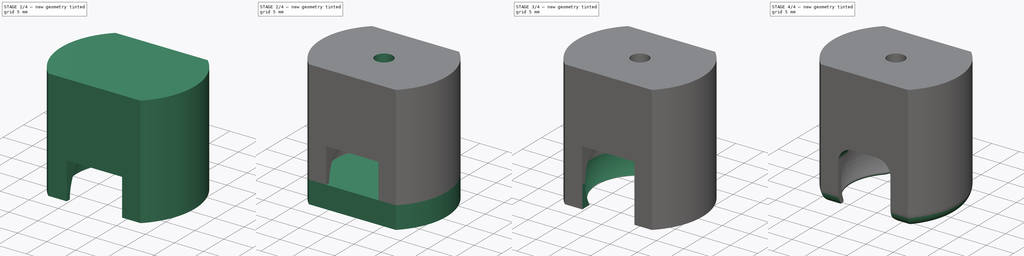
[diagram: build sequence overview — one tinted view per stage of 4, left to right]
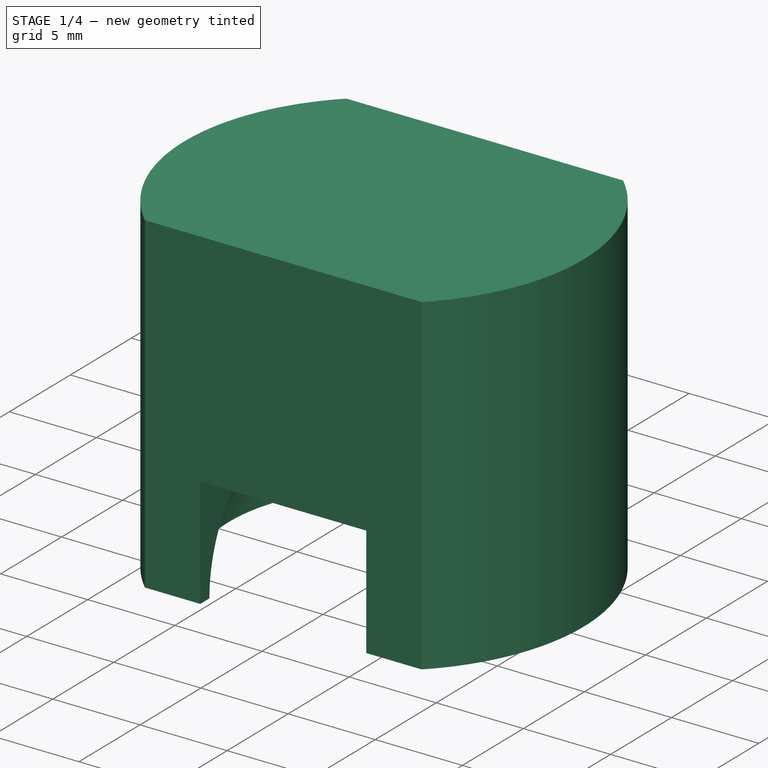
[diagram: stage 1 of 4 — iso view after this stage's code; geometry added in this stage tinted green]
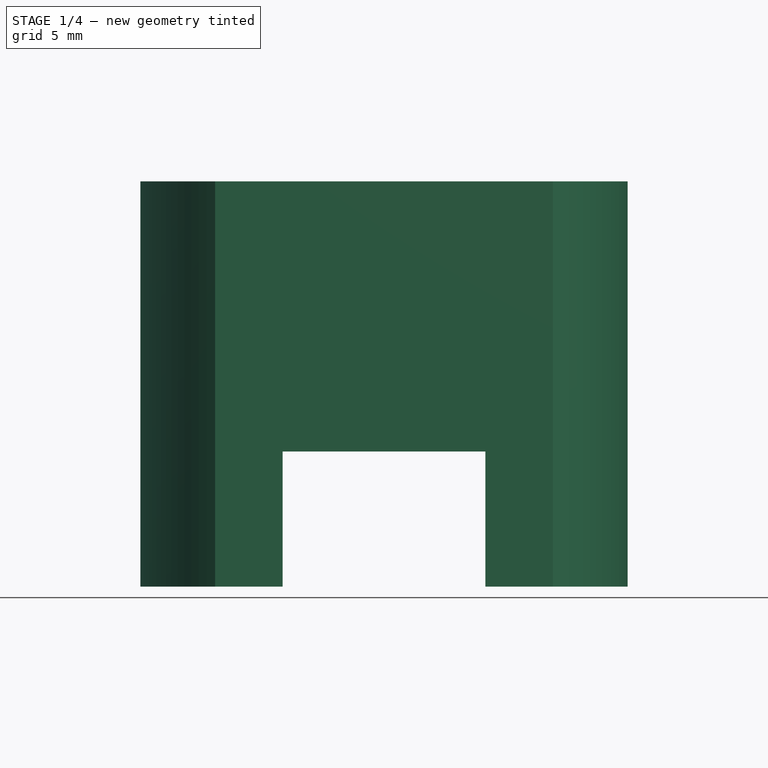
[diagram: stage 1 of 4 — front view after this stage's code; geometry added in this stage tinted green]
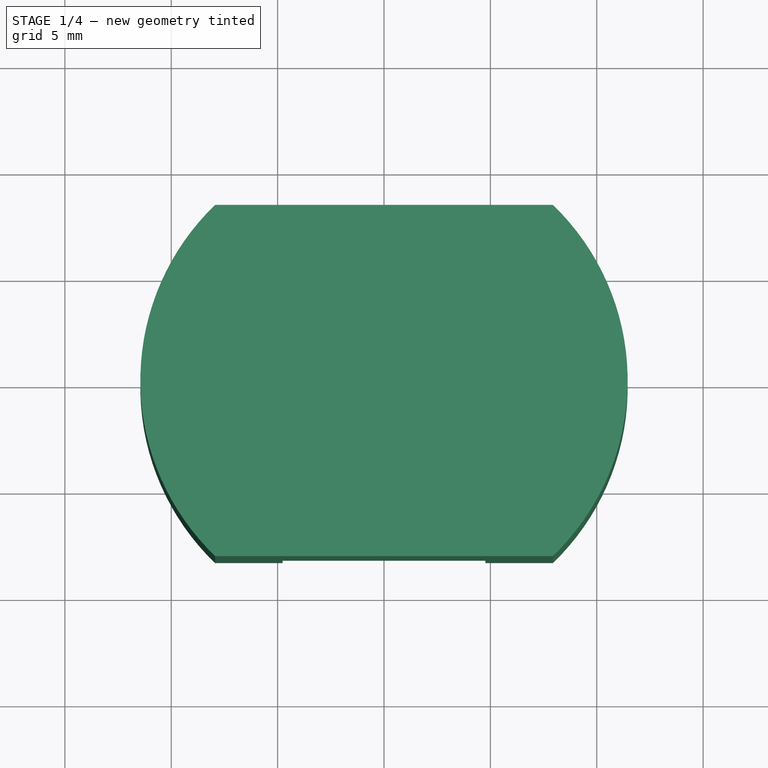
[diagram: stage 1 of 4 — top view after this stage's code; geometry added in this stage tinted green]
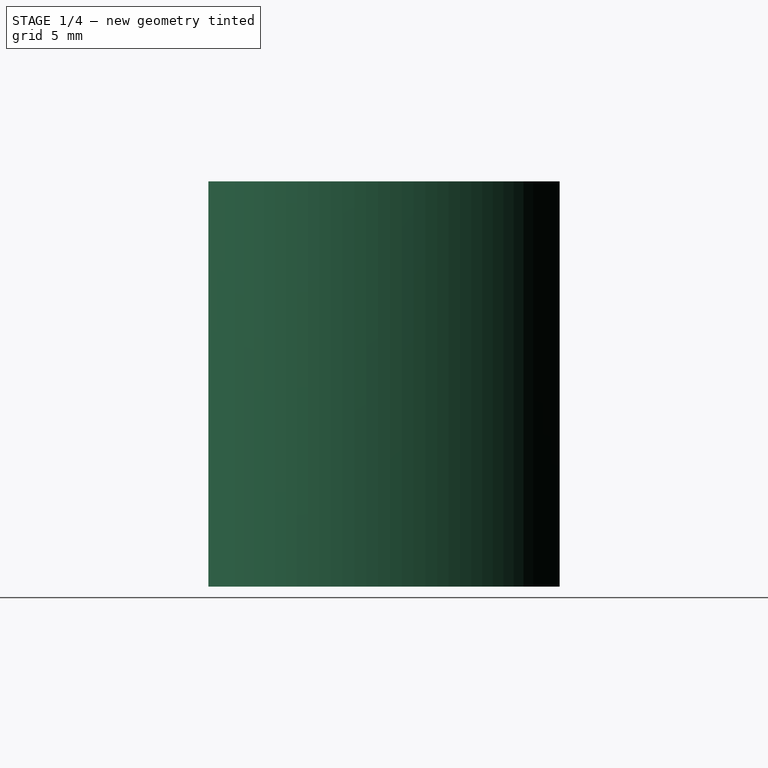
[diagram: stage 1 of 4 — right view after this stage's code; geometry added in this stage tinted green]
FCSTD DOCUMENT  (FreeCAD 0.15R4671 (Git))
Label: caster
License: All rights reserved
LicenseURL: http://en.wikipedia.org/wiki/All_rights_reserved
objects: Sketcher::SketchObject×8, PartDesign::Pocket×4, PartDesign::Fillet×3, PartDesign::Pad×2, PartDesign::Groove×2
note: 27 computed .brp shape members not serialized (recipe doc carries the construction recipe); baked Part::Feature solids carry a one-line shape summary decoded from their .brp

FEATURE [Sketcher::SketchObject] Sketch
  sketch-geometry (5):
    g0: Circle [constr] CenterX=0 CenterY=0 CenterZ=0 NormalX=0 NormalY=0 NormalZ=1 Radius=7.9375
    g1: LineSegment StartX=-7.9375 StartY=-8.255 StartZ=0 EndX=7.9375 EndY=-8.255 EndZ=0
    g2: LineSegment StartX=-7.9375 StartY=8.255 StartZ=0 EndX=7.9375 EndY=8.255 EndZ=0
    g3: ArcOfCircle CenterX=0 CenterY=0 CenterZ=0 NormalX=0 NormalY=0 NormalZ=1 Radius=11.452 StartAngle=5.47818 EndAngle=7.08819
    g4: ArcOfCircle CenterX=0 CenterY=0 CenterZ=0 NormalX=0 NormalY=0 NormalZ=1 Radius=11.452 StartAngle=2.33659 EndAngle=3.9466
  constraints (13):
    c: Radius(g0) = 7.9375
    c: Coincident(g0,g-1)
    c: Equal(g2,g1)
    c: Symmetric(g2,g2,g-2)
    c: Symmetric(g1,g1,g-2)
    c: Distance(g2) = 15.875
    c: Coincident(g3,g2)
    c: Coincident(g3,g1)
    c: Coincident(g3,g-1)
    c: Coincident(g4,g2)
    c: Coincident(g4,g1)
    c: Equal(g4,g3)
    c: Distance(g2,g1) = 16.51
FEATURE [PartDesign::Pad] Pad
  Length = 19.05
  Length2 = 100
  Sketch = -> Sketch
  Type = 0
FEATURE [Sketcher::SketchObject] Sketch001
  Placement = pos=(0,0,0) rot=(1,0,0;3.14159rad)
  Support = -> Pad [Face5]
  sketch-geometry (2):
    g0: ArcOfCircle CenterX=0 CenterY=0 CenterZ=0 NormalX=0 NormalY=0 NormalZ=1 Radius=8.89 StartAngle=4.71239 EndAngle=7.85398
    g1: LineSegment StartX=0 StartY=-8.89 StartZ=0 EndX=0 EndY=8.89 EndZ=0
  constraints (6):
    c: Radius(g0) = 8.89
    c: Coincident(g0,g-1)
    c: Vertical(g1)
    c: Coincident(g0,g1)
    c: Coincident(g0,g1)
    c: PointOnObject(g0,g-2)
FEATURE [PartDesign::Groove] Groove
  Angle = 180
  Axis = (0,-1,0)
  Base = (0,0,0)
  ReferenceAxis = -> Sketch001 [V_Axis]
  Sketch = -> Sketch001
FEATURE [Sketcher::SketchObject] Sketch002
  Placement = pos=(0,8.255,0) rot=(0,0.707107,0.707107;3.14159rad)
  Support = -> Groove [Face2]
  sketch-geometry (4):
    g0: LineSegment StartX=-4.7625 StartY=0 StartZ=0 EndX=-4.7625 EndY=6.35 EndZ=0
    g1: LineSegment StartX=-4.7625 StartY=6.35 StartZ=0 EndX=4.7625 EndY=6.35 EndZ=0
    g2: LineSegment StartX=4.7625 StartY=6.35 StartZ=0 EndX=4.7625 EndY=0 EndZ=0
    g3: LineSegment StartX=4.7625 StartY=0 StartZ=0 EndX=-4.7625 EndY=0 EndZ=0
  constraints (12):
    c: PointOnObject(g0,g-1)
    c: Vertical(g0)
    c: Coincident(g0,g1)
    c: Horizontal(g1)
    c: Coincident(g1,g2)
    c: PointOnObject(g2,g-1)
    c: Coincident(g2,g3)
    c: Coincident(g3,g0)
    c: Vertical(g2)
    c: Symmetric(g1,g0,g-2)
    c: Distance(g2) = 6.35
    c: Distance(g1) = 9.525
FEATURE [PartDesign::Pocket] Pocket
  Length = 25.4
  Sketch = -> Sketch002
  Type = 0
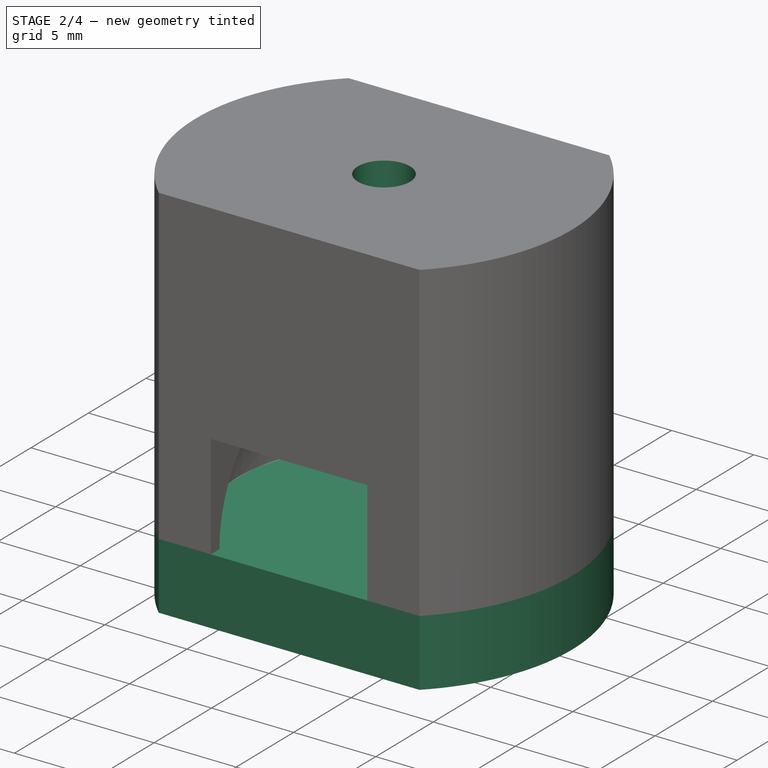
[diagram: stage 2 of 4 — iso view after this stage's code; geometry added in this stage tinted green]
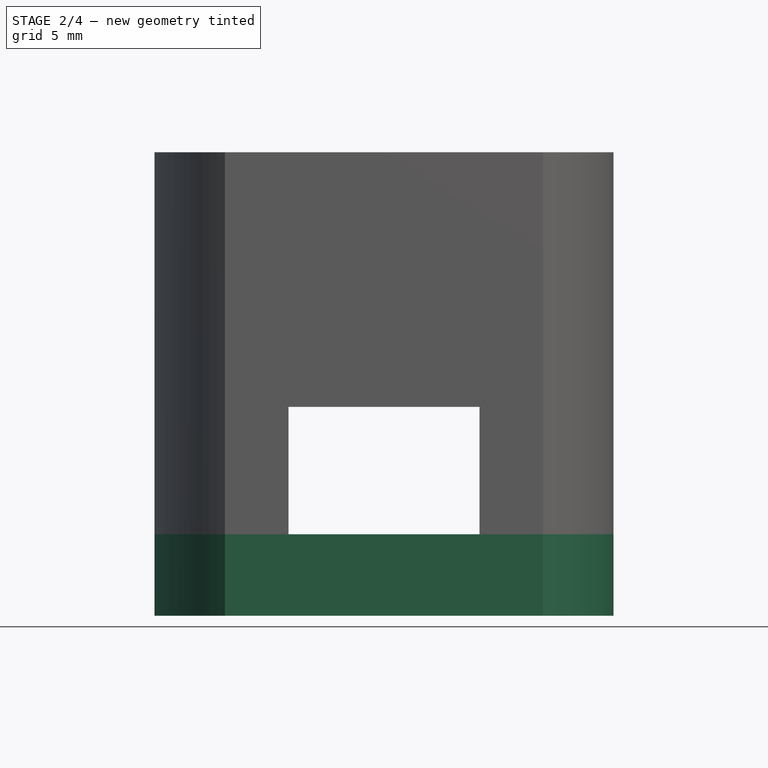
[diagram: stage 2 of 4 — front view after this stage's code; geometry added in this stage tinted green]
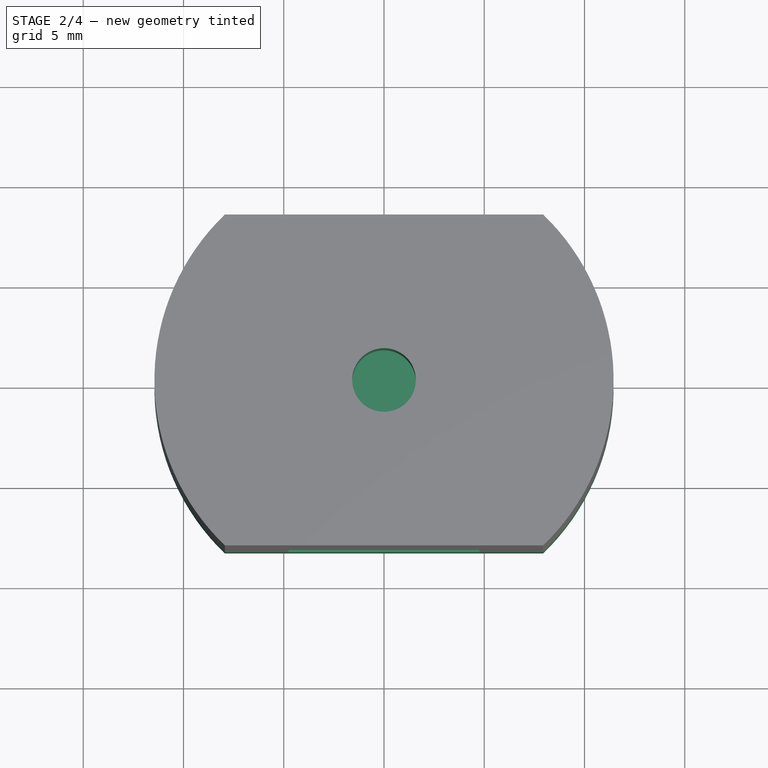
[diagram: stage 2 of 4 — top view after this stage's code; geometry added in this stage tinted green]
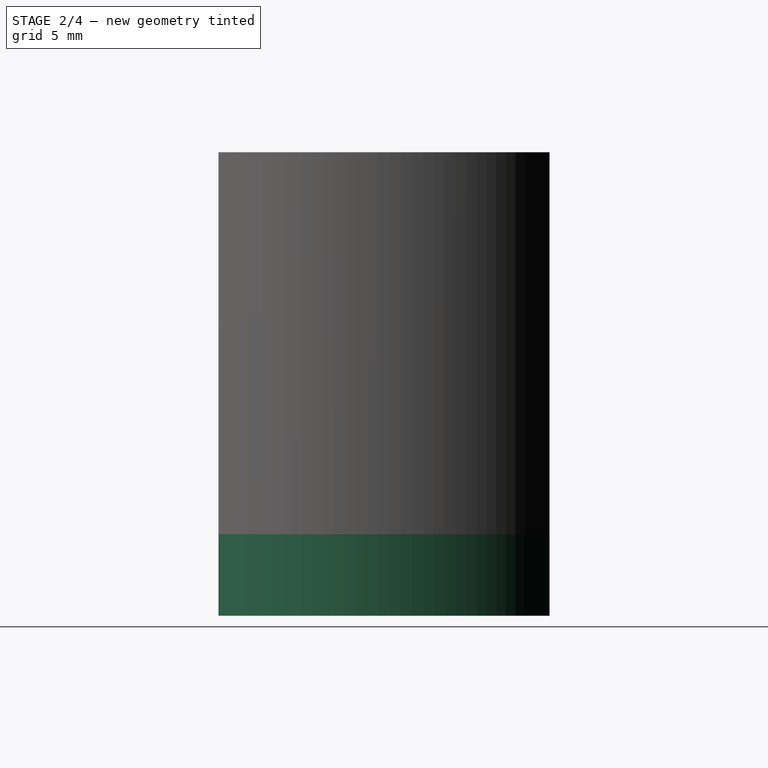
[diagram: stage 2 of 4 — right view after this stage's code; geometry added in this stage tinted green]
FEATURE [Sketcher::SketchObject] Sketch003
  Placement = pos=(0,0,0) rot=(1,0,0;3.14159rad)
  Support = -> Pocket [Face9]
  sketch-geometry (1):
    g0: Circle CenterX=0 CenterY=0 CenterZ=0 NormalX=0 NormalY=0 NormalZ=1 Radius=2.8575
  constraints (2):
    c: Coincident(g0,g-1)
    c: Radius(g0) = 2.8575
FEATURE [PartDesign::Pocket] Pocket001
  Length = 12.7
  Sketch = -> Sketch003
  Type = 0
FEATURE [Sketcher::SketchObject] Sketch004
  Placement = pos=(0,0,19.05) rot=(0,0,1;0rad)
  Support = -> Pocket001 [Face5]
  sketch-geometry (1):
    g0: Circle CenterX=0 CenterY=0 CenterZ=0 NormalX=0 NormalY=0 NormalZ=1 Radius=1.5875
  constraints (2):
    c: Coincident(g0,g-1)
    c: Radius(g0) = 1.5875
FEATURE [PartDesign::Pocket] Pocket002
  Length = 7.9375
  Sketch = -> Sketch004
  Type = 0
FEATURE [Sketcher::SketchObject] Sketch005
  Placement = pos=(0,0,0) rot=(1,0,0;3.14159rad)
  Support = -> Pocket002 [Face4]
  sketch-geometry (5):
    g0: Circle [constr] CenterX=0 CenterY=0 CenterZ=0 NormalX=0 NormalY=0 NormalZ=1 Radius=8.255
    g1: LineSegment StartX=-7.9375 StartY=8.255 StartZ=0 EndX=7.9375 EndY=8.255 EndZ=0
    g2: LineSegment StartX=-7.9375 StartY=-8.255 StartZ=0 EndX=7.9375 EndY=-8.255 EndZ=0
    g3: ArcOfCircle CenterX=0 CenterY=0 CenterZ=0 NormalX=0 NormalY=0 NormalZ=1 Radius=11.452 StartAngle=2.33659 EndAngle=3.9466
    g4: ArcOfCircle CenterX=-8e-12 CenterY=1e-12 CenterZ=0 NormalX=0 NormalY=0 NormalZ=1 Radius=11.452 StartAngle=5.47818 EndAngle=7.08819
  constraints (16):
    c: Coincident(g0,g-1)
    c: Radius(g0) = 8.255
    c: Horizontal(g1)
    c: Horizontal(g2)
    c: Symmetric(g2,g2,g-2)
    c: Symmetric(g1,g1,g-2)
    c: Equal(g1,g2)
    c: Distance(g1,g2) = 16.51
    c: Symmetric(g1,g2,g-1)
    c: Distance(g1) = 15.875
    c: Coincident(g3,g1)
    c: Coincident(g3,g2)
    c: Coincident(g3,g-1)
    c: Coincident(g4,g1)
    c: Coincident(g4,g2)
    c: Equal(g4,g3)
FEATURE [PartDesign::Pad] Pad001
  Length = 4.064
  Length2 = 100
  Sketch = -> Sketch005
  Type = 0
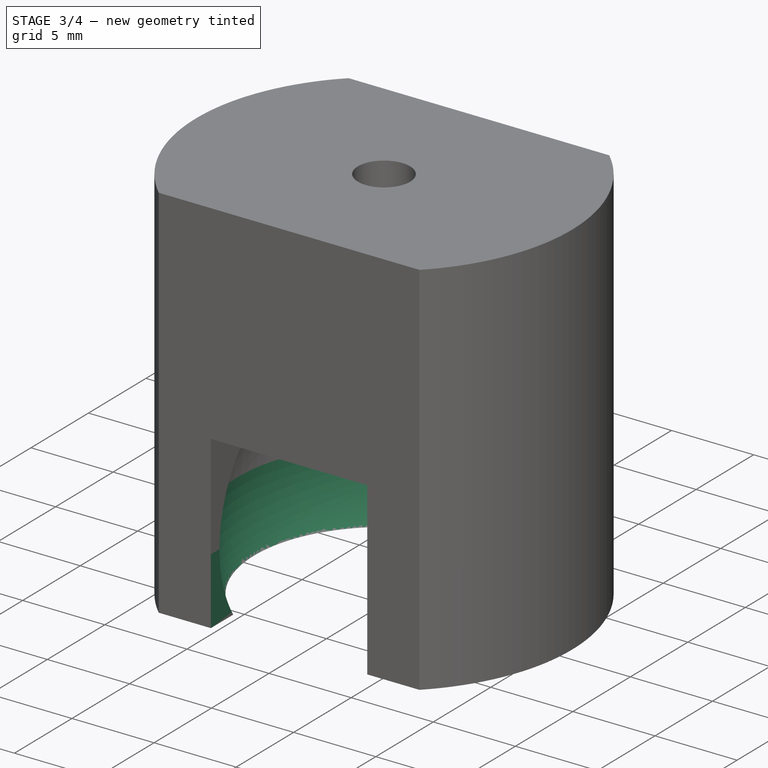
[diagram: stage 3 of 4 — iso view after this stage's code; geometry added in this stage tinted green]
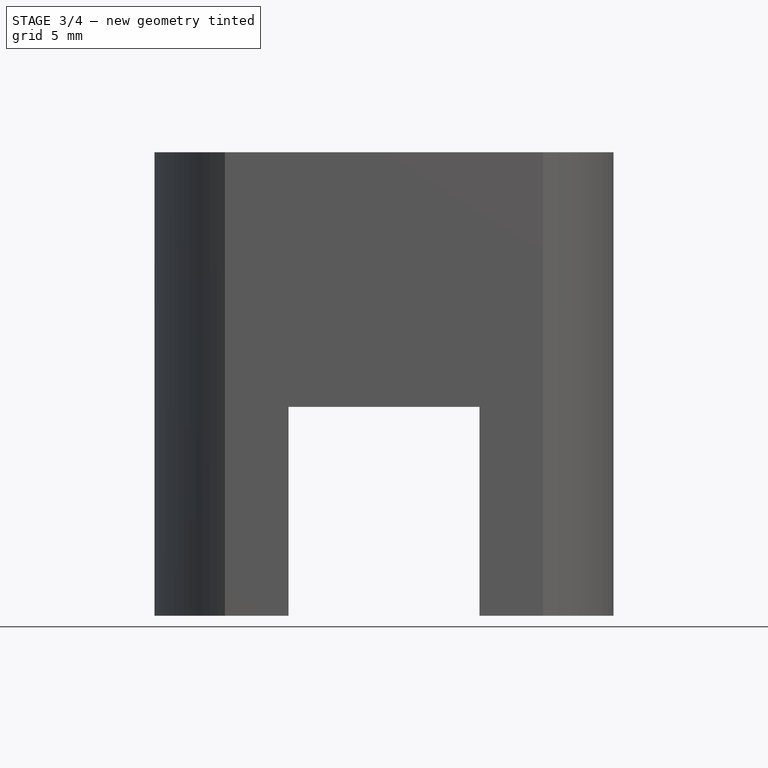
[diagram: stage 3 of 4 — front view after this stage's code; geometry added in this stage tinted green]
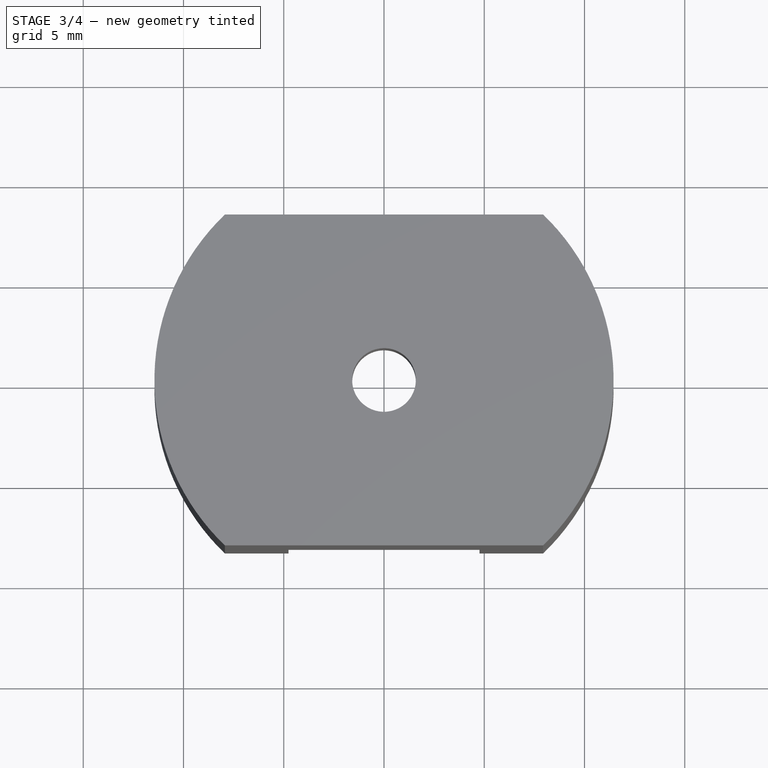
[diagram: stage 3 of 4 — top view after this stage's code; geometry added in this stage tinted green]
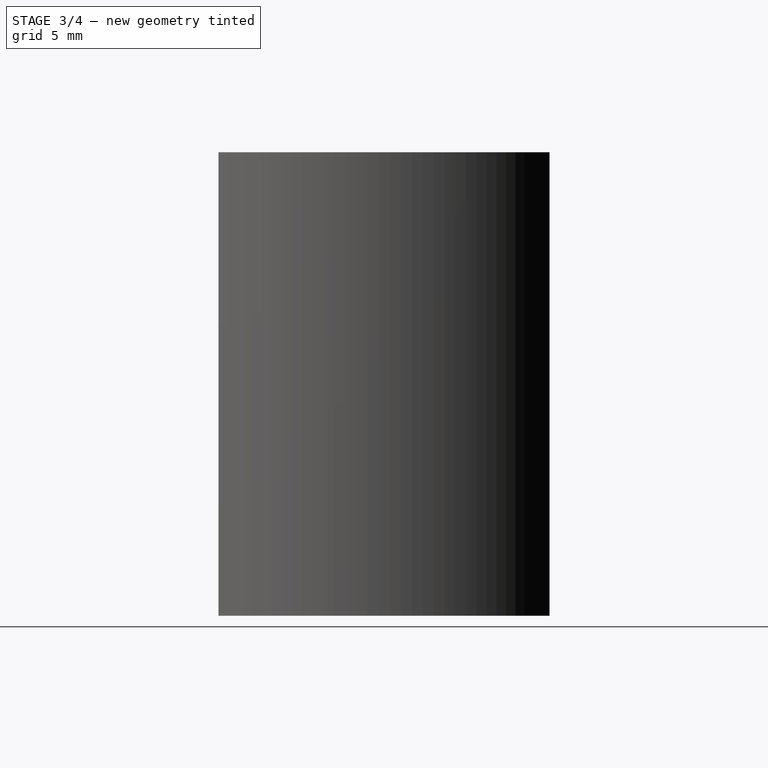
[diagram: stage 3 of 4 — right view after this stage's code; geometry added in this stage tinted green]
FEATURE [Sketcher::SketchObject] Sketch006
  Placement = pos=(0,8.255,0) rot=(0,0.707107,0.707107;3.14159rad)
  Support = -> Pad001 [Face8]
  sketch-geometry (4):
    g0: LineSegment StartX=-4.7625 StartY=0 StartZ=0 EndX=4.7625 EndY=0 EndZ=0
    g1: LineSegment StartX=4.7625 StartY=0 StartZ=0 EndX=4.7625 EndY=-4.064 EndZ=0
    g2: LineSegment StartX=4.7625 StartY=-4.064 StartZ=0 EndX=-4.7625 EndY=-4.064 EndZ=0
    g3: LineSegment StartX=-4.7625 StartY=-4.064 StartZ=0 EndX=-4.7625 EndY=0 EndZ=0
  constraints (12):
    c: Coincident(g0,g1)
    c: Coincident(g1,g2)
    c: Coincident(g2,g3)
    c: Coincident(g3,g0)
    c: Horizontal(g0)
    c: Horizontal(g2)
    c: Vertical(g1)
    c: Vertical(g3)
    c: PointOnObject(g0,g-1)
    c: Symmetric(g0,g0,g-2)
    c: Distance(g0) = 9.525
    c: Distance(g1) = 4.064
FEATURE [PartDesign::Pocket] Pocket003
  Length = 25.4
  Sketch = -> Sketch006
  Type = 0
FEATURE [Sketcher::SketchObject] Sketch007
  Support = -> Pocket003 [Face26]
  sketch-geometry (2):
    g0: LineSegment StartX=0 StartY=-8.89 StartZ=0 EndX=0 EndY=8.89 EndZ=0
    g1: ArcOfCircle CenterX=4.0909e-05 CenterY=0 CenterZ=0 NormalX=0 NormalY=0 NormalZ=1 Radius=8.89 StartAngle=4.71238 EndAngle=7.85399
  constraints (7):
    c: PointOnObject(g0,g-2)
    c: PointOnObject(g0,g-2)
    c: Coincident(g1,g0)
    c: Coincident(g1,g0)
    c: Symmetric(g0,g0,g-1)
    c: Radius(g1) = 8.89
    c: Distance(g0) = 17.78
FEATURE [PartDesign::Groove] Groove001
  Angle = 180
  Axis = (0,1,0)
  Base = (0,0,0)
  ReferenceAxis = -> Sketch007 [V_Axis]
  Sketch = -> Sketch007
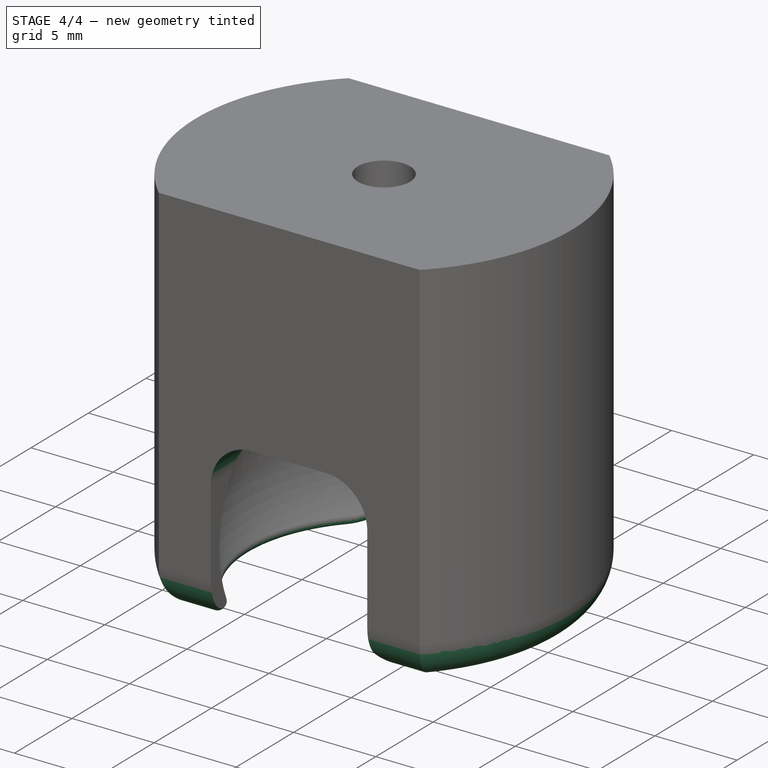
[diagram: stage 4 of 4 — iso view after this stage's code; geometry added in this stage tinted green]
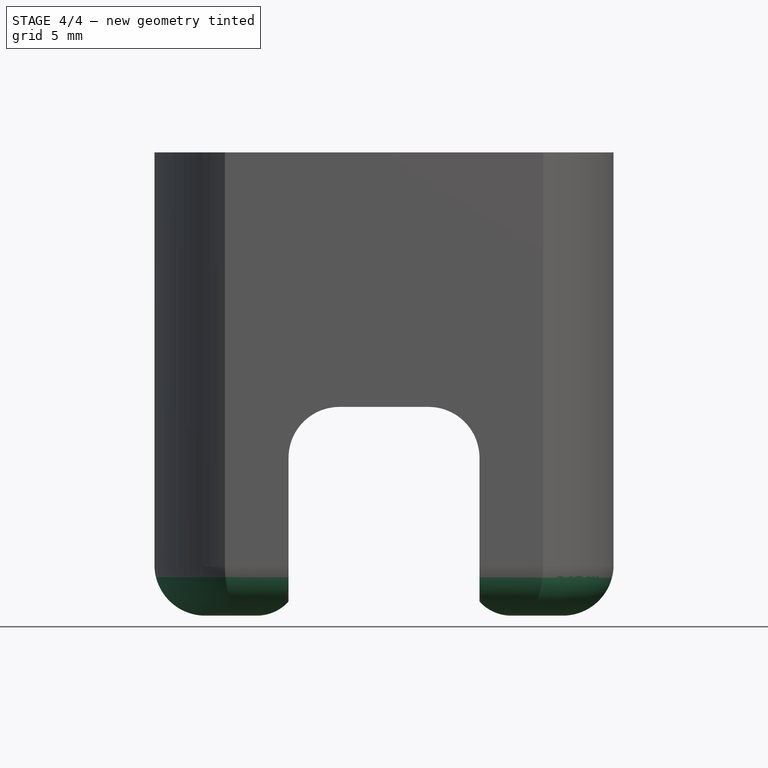
[diagram: stage 4 of 4 — front view after this stage's code; geometry added in this stage tinted green]
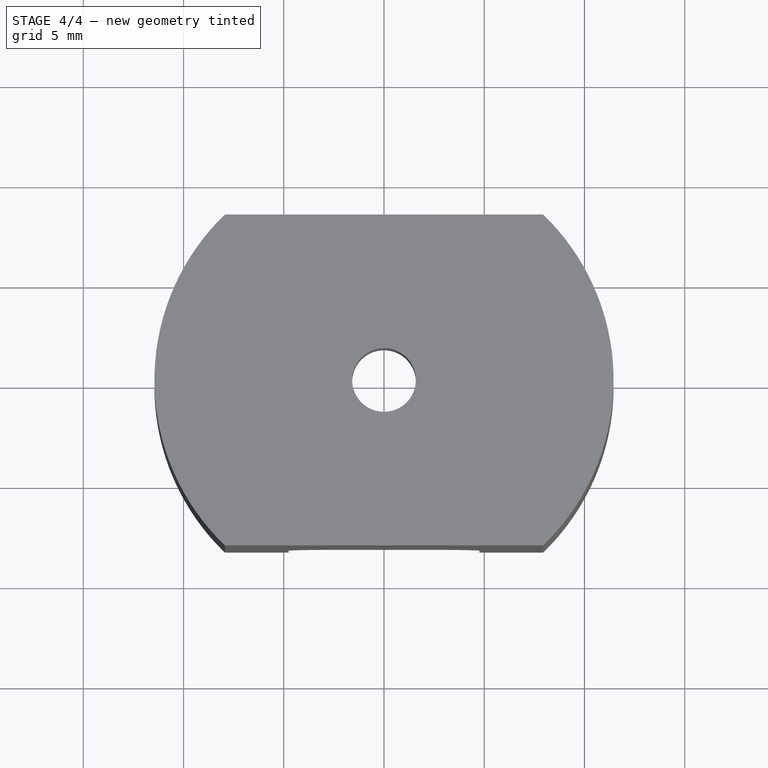
[diagram: stage 4 of 4 — top view after this stage's code; geometry added in this stage tinted green]
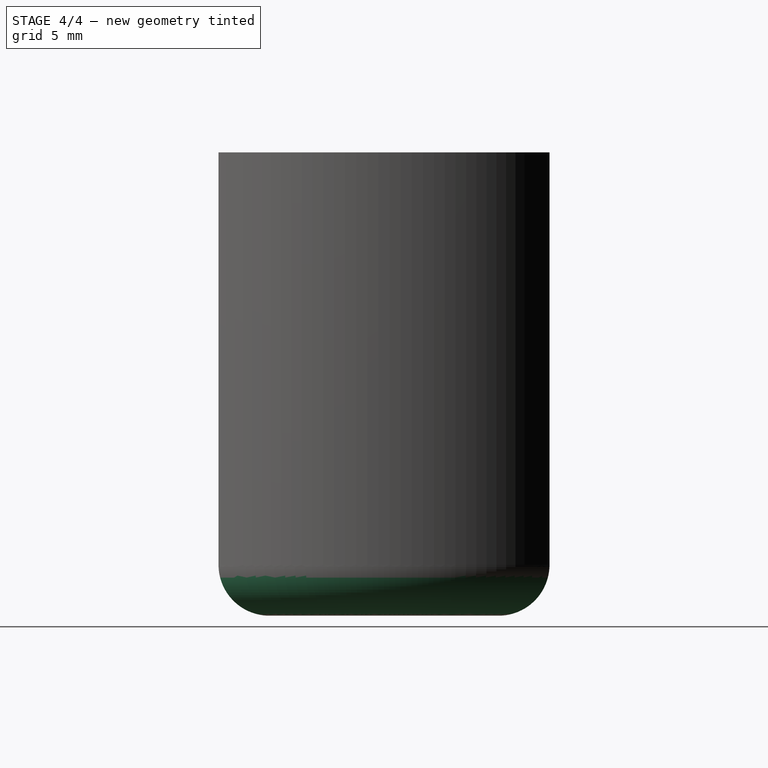
[diagram: stage 4 of 4 — right view after this stage's code; geometry added in this stage tinted green]
FEATURE [PartDesign::Fillet] Fillet
  Base = -> Groove001 [Edge29,Edge44,Edge34,Edge48]
  Radius = 2.54
FEATURE [PartDesign::Fillet] Fillet001
  Base = -> Fillet [Edge68,Edge36,Edge70,Edge53,Edge50,Edge18]
  Radius = 2.54
FEATURE [PartDesign::Fillet] Fillet002
  Base = -> Fillet001 [Edge29,Edge92]
  Radius = 0.4064
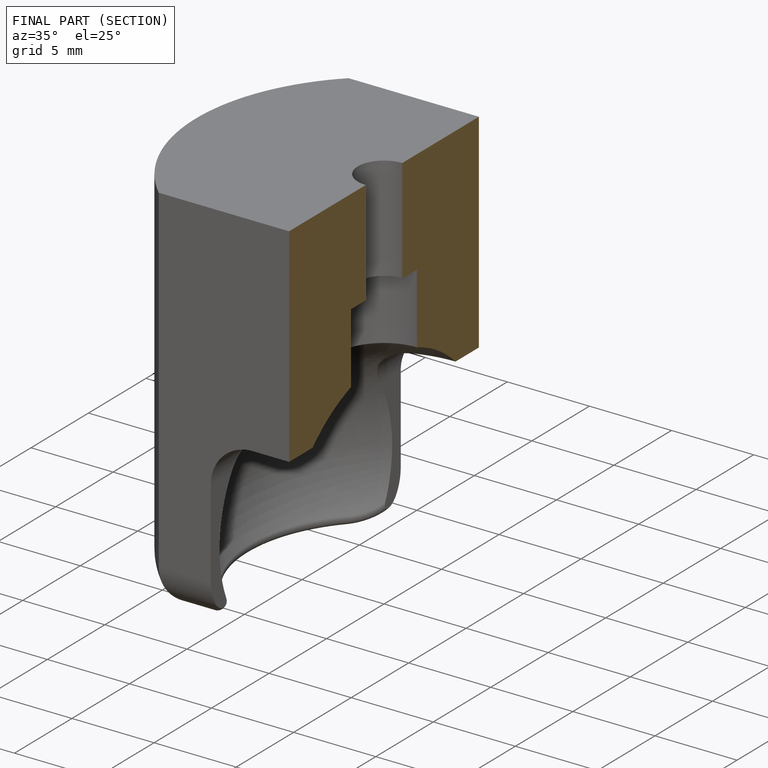
[diagram: finished part — half-section view (interior)]
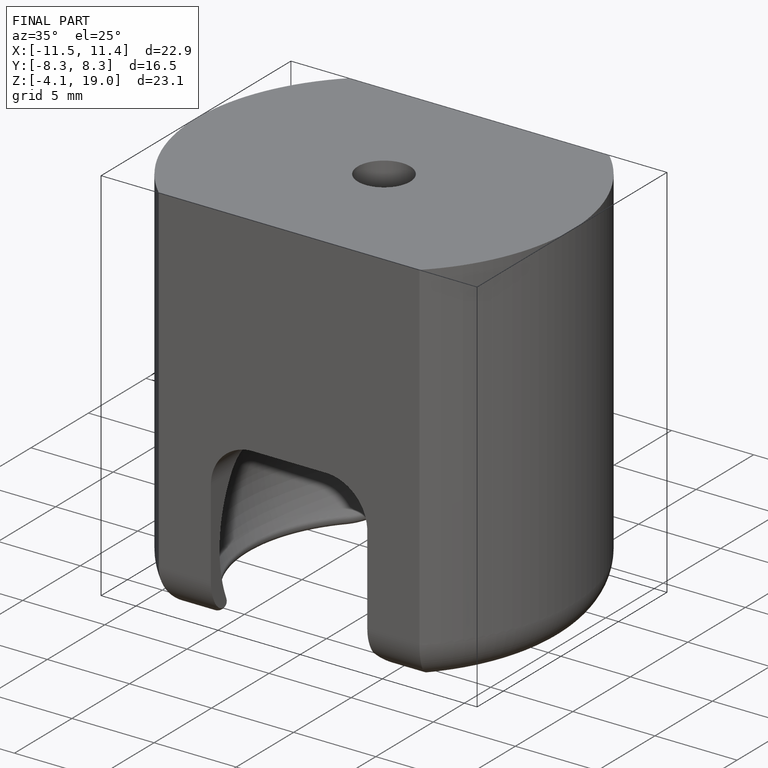
[diagram: finished part — iso view with bounding-box wireframe]
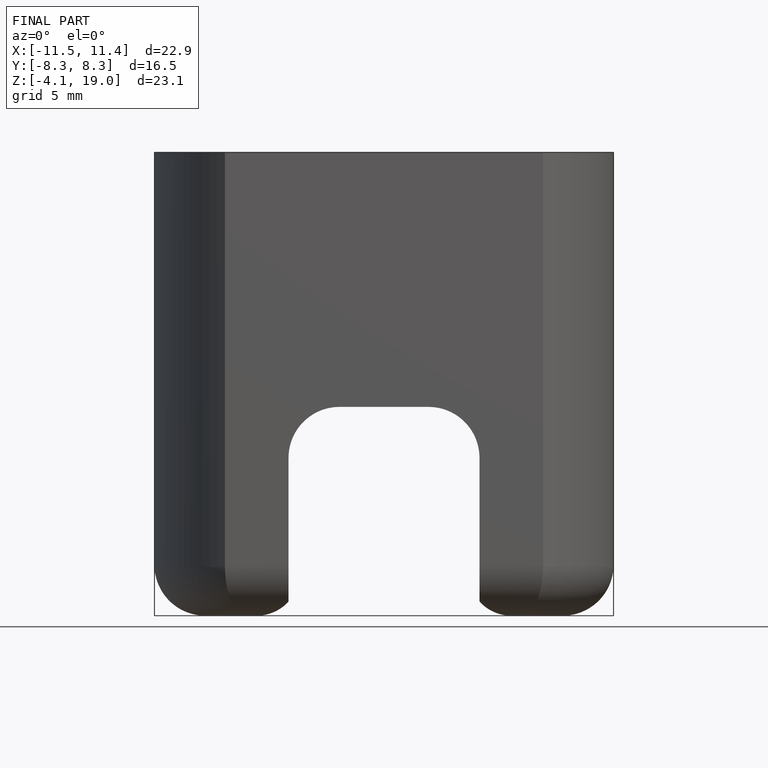
[diagram: finished part — front view with bounding-box wireframe]
